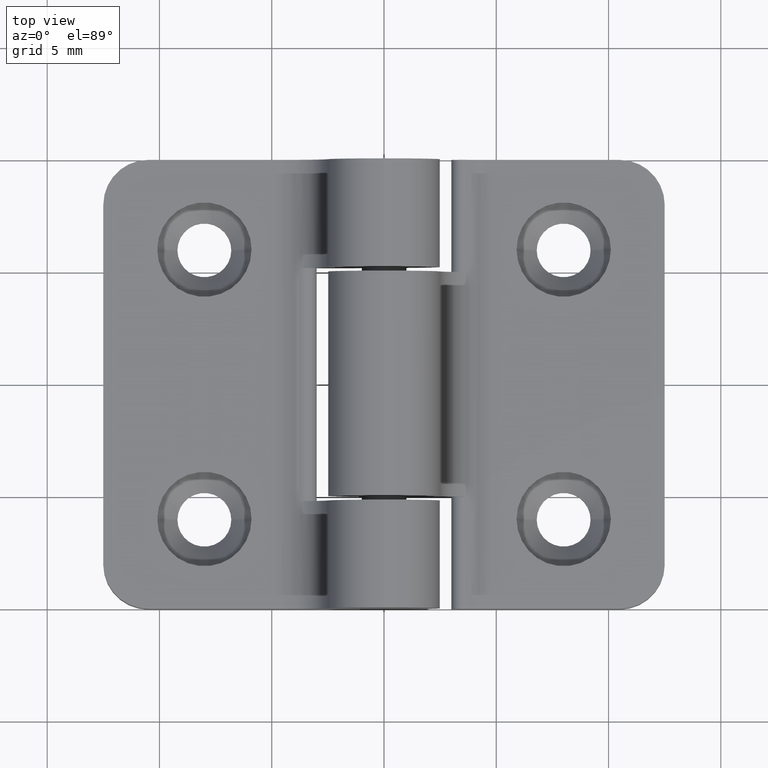
[diagram: clean part render]
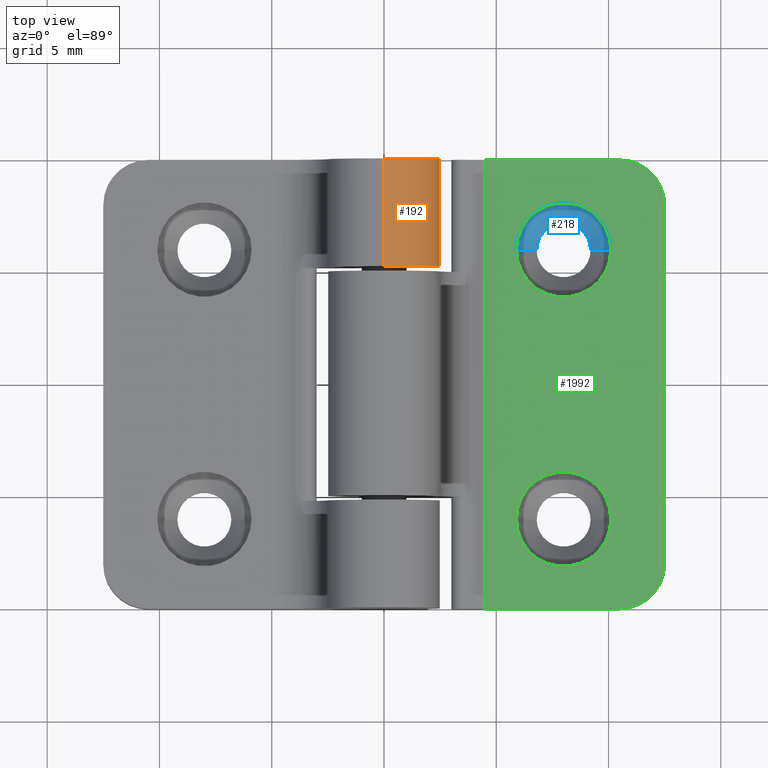
[diagram: same view with three faces highlighted in distinct colors, each labeled with its STEP entity id]
A machine part, top view with three faces highlighted in distinct colors.
Their STEP definitions:

[orange] entity #192 — the highlighted cylindrical surface (partial cylindrical patch) has radius 2.5 mm, axis along (-0, -1, -0).
#96 = DIRECTION ( 'NONE',  ( 0.0000000000000000000, 0.0000000000000000000, 1.000000000000000000 ) ) ;
#104 = DIRECTION ( 'NONE',  ( -0.0000000000000000000, -1.000000000000000000, -0.0000000000000000000 ) ) ;
#106 = AXIS2_PLACEMENT_3D ( 'NONE', #2408, #1272, #96 ) ;
#108 = CYLINDRICAL_SURFACE ( 'NONE', #1649, 2.500000000000000400 ) ;
#120 = CIRCLE ( 'NONE', #106, 2.500000000000000400 ) ;
#163 = VERTEX_POINT ( 'NONE', #731 ) ;
#192 = ADVANCED_FACE ( 'NONE', ( #708 ), #108, .T. ) ;
#259 = EDGE_CURVE ( 'NONE', #163, #2087, #457, .T. ) ;
#335 = CARTESIAN_POINT ( 'NONE',  ( 3.061616997868383600E-016, 20.00000000000000000, 2.500000000000000400 ) ) ;
#437 = EDGE_CURVE ( 'NONE', #1980, #2087, #1501, .T. ) ;
#457 = CIRCLE ( 'NONE', #2292, 2.500000000000000400 ) ;
#525 = DIRECTION ( 'NONE',  ( -0.0000000000000000000, -1.000000000000000000, -0.0000000000000000000 ) ) ;
#629 = LINE ( 'NONE', #688, #1582 ) ;
#688 = CARTESIAN_POINT ( 'NONE',  ( 0.0000000000000000000, 20.00000000000000000, -2.500000000000000400 ) ) ;
#708 = FACE_OUTER_BOUND ( 'NONE', #2151, .T. ) ;
#731 = CARTESIAN_POINT ( 'NONE',  ( -1.003088512701685300E-030, 15.19999999999999900, -2.500000000000000400 ) ) ;
#767 = ORIENTED_EDGE ( 'NONE', *, *, #259, .F. ) ;
#871 = DIRECTION ( 'NONE',  ( 1.000000000000000000, -6.938893903907227400E-016, 0.0000000000000000000 ) ) ;
#1032 = VERTEX_POINT ( 'NONE', #2119 ) ;
#1053 = CARTESIAN_POINT ( 'NONE',  ( 0.0000000000000000000, 15.19999999999999900, 0.0000000000000000000 ) ) ;
#1235 = CARTESIAN_POINT ( 'NONE',  ( 3.061616997868383600E-016, 20.00000000000000000, 2.500000000000000400 ) ) ;
#1268 = ORIENTED_EDGE ( 'NONE', *, *, #1628, .F. ) ;
#1272 = DIRECTION ( 'NONE',  ( 0.0000000000000000000, 1.000000000000000000, 0.0000000000000000000 ) ) ;
#1501 = LINE ( 'NONE', #1235, #1574 ) ;
#1574 = VECTOR ( 'NONE', #104, 1000.000000000000000 ) ;
#1582 = VECTOR ( 'NONE', #2032, 1000.000000000000000 ) ;
#1627 = CARTESIAN_POINT ( 'NONE',  ( 0.0000000000000000000, 20.00000000000000000, 0.0000000000000000000 ) ) ;
#1628 = EDGE_CURVE ( 'NONE', #1980, #1032, #120, .T. ) ;
#1637 = CARTESIAN_POINT ( 'NONE',  ( 3.061616997868373300E-016, 15.19999999999999900, 2.500000000000000400 ) ) ;
#1649 = AXIS2_PLACEMENT_3D ( 'NONE', #1627, #525, #2019 ) ;
#1810 = EDGE_CURVE ( 'NONE', #1032, #163, #629, .T. ) ;
#1980 = VERTEX_POINT ( 'NONE', #335 ) ;
#2019 = DIRECTION ( 'NONE',  ( 0.0000000000000000000, 0.0000000000000000000, -1.000000000000000000 ) ) ;
#2032 = DIRECTION ( 'NONE',  ( -0.0000000000000000000, -1.000000000000000000, -0.0000000000000000000 ) ) ;
#2087 = VERTEX_POINT ( 'NONE', #1637 ) ;
#2119 = CARTESIAN_POINT ( 'NONE',  ( 0.0000000000000000000, 20.00000000000000000, -2.500000000000000400 ) ) ;
#2151 = EDGE_LOOP ( 'NONE', ( #1268, #2395, #767, #2349 ) ) ;
#2211 = DIRECTION ( 'NONE',  ( -5.782411586589356700E-016, -1.000000000000000000, -0.0000000000000000000 ) ) ;
#2292 = AXIS2_PLACEMENT_3D ( 'NONE', #1053, #2211, #871 ) ;
#2349 = ORIENTED_EDGE ( 'NONE', *, *, #1810, .F. ) ;
#2395 = ORIENTED_EDGE ( 'NONE', *, *, #437, .T. ) ;
#2408 = CARTESIAN_POINT ( 'NONE',  ( 0.0000000000000000000, 20.00000000000000000, 0.0000000000000000000 ) ) ;

[blue] entity #218 — the highlighted conical surface has half-angle 45 deg.
#20 = EDGE_CURVE ( 'NONE', #983, #912, #408, .T. ) ;
#38 = VERTEX_POINT ( 'NONE', #2110 ) ;
#149 = LINE ( 'NONE', #377, #1579 ) ;
#203 = ORIENTED_EDGE ( 'NONE', *, *, #20, .T. ) ;
#212 = ORIENTED_EDGE ( 'NONE', *, *, #1389, .F. ) ;
#218 = ADVANCED_FACE ( 'NONE', ( #1536 ), #1989, .F. ) ;
#320 = CARTESIAN_POINT ( 'NONE',  ( 8.000000000000000000, 16.00000000000000000, -2.000000000000000000 ) ) ;
#377 = CARTESIAN_POINT ( 'NONE',  ( 5.899999999999998600, 16.00000000000000000, -2.000000000000000000 ) ) ;
#408 = LINE ( 'NONE', #1538, #2368 ) ;
#505 = DIRECTION ( 'NONE',  ( -0.0000000000000000000, -0.0000000000000000000, 1.000000000000000000 ) ) ;
#542 = ORIENTED_EDGE ( 'NONE', *, *, #2324, .F. ) ;
#555 = CARTESIAN_POINT ( 'NONE',  ( 5.899999999999998600, 16.00000000000000000, -2.000000000000000000 ) ) ;
#606 = DIRECTION ( 'NONE',  ( 0.0000000000000000000, 0.0000000000000000000, 1.000000000000000000 ) ) ;
#702 = ORIENTED_EDGE ( 'NONE', *, *, #1057, .T. ) ;
#754 = CIRCLE ( 'NONE', #1308, 1.199999999999999700 ) ;
#760 = CARTESIAN_POINT ( 'NONE',  ( 9.199999999999999300, 16.00000000000000000, -2.899999999999997200 ) ) ;
#777 = DIRECTION ( 'NONE',  ( -0.7071067811865487900, 8.659560562354948900E-017, 0.7071067811865463500 ) ) ;
#811 = CARTESIAN_POINT ( 'NONE',  ( 10.10000000000000100, 16.00000000000000000, -2.000000000000000000 ) ) ;
#912 = VERTEX_POINT ( 'NONE', #811 ) ;
#983 = VERTEX_POINT ( 'NONE', #760 ) ;
#1057 = EDGE_CURVE ( 'NONE', #912, #1804, #1554, .T. ) ;
#1110 = DIRECTION ( 'NONE',  ( -0.0000000000000000000, -0.0000000000000000000, 1.000000000000000000 ) ) ;
#1143 = AXIS2_PLACEMENT_3D ( 'NONE', #1751, #606, #1942 ) ;
#1308 = AXIS2_PLACEMENT_3D ( 'NONE', #2258, #1110, #2447 ) ;
#1389 = EDGE_CURVE ( 'NONE', #983, #38, #754, .T. ) ;
#1536 = FACE_OUTER_BOUND ( 'NONE', #2193, .T. ) ;
#1538 = CARTESIAN_POINT ( 'NONE',  ( 10.10000000000000100, 16.00000000000000000, -2.000000000000000000 ) ) ;
#1554 = CIRCLE ( 'NONE', #1143, 2.100000000000001000 ) ;
#1579 = VECTOR ( 'NONE', #777, 1000.000000000000000 ) ;
#1647 = DIRECTION ( 'NONE',  ( 1.000000000000000000, 0.0000000000000000000, 0.0000000000000000000 ) ) ;
#1751 = CARTESIAN_POINT ( 'NONE',  ( 8.000000000000000000, 16.00000000000000000, -2.000000000000000000 ) ) ;
#1779 = AXIS2_PLACEMENT_3D ( 'NONE', #320, #505, #1647 ) ;
#1804 = VERTEX_POINT ( 'NONE', #555 ) ;
#1942 = DIRECTION ( 'NONE',  ( 1.000000000000000000, 0.0000000000000000000, 0.0000000000000000000 ) ) ;
#1989 = CONICAL_SURFACE ( 'NONE', #1779, 2.100000000000001000, 0.7853981633974500600 ) ;
#2110 = CARTESIAN_POINT ( 'NONE',  ( 6.799999999999999800, 16.00000000000000000, -2.899999999999997200 ) ) ;
#2193 = EDGE_LOOP ( 'NONE', ( #542, #212, #203, #702 ) ) ;
#2258 = CARTESIAN_POINT ( 'NONE',  ( 8.000000000000000000, 16.00000000000000000, -2.899999999999997200 ) ) ;
#2295 = DIRECTION ( 'NONE',  ( 0.7071067811865487900, 0.0000000000000000000, 0.7071067811865463500 ) ) ;
#2324 = EDGE_CURVE ( 'NONE', #38, #1804, #149, .T. ) ;
#2368 = VECTOR ( 'NONE', #2295, 1000.000000000000000 ) ;
#2447 = DIRECTION ( 'NONE',  ( 1.000000000000000000, 0.0000000000000000000, 0.0000000000000000000 ) ) ;

[green] entity #1992 — the highlighted planar face has unit normal (0, 0, -1).
#6 = EDGE_LOOP ( 'NONE', ( #2224, #1961 ) ) ;
#31 = LINE ( 'NONE', #204, #2104 ) ;
#43 = VERTEX_POINT ( 'NONE', #602 ) ;
#143 = CARTESIAN_POINT ( 'NONE',  ( 1.000000000000000200, 20.00000000000000000, -1.500000000000000000 ) ) ;
#204 = CARTESIAN_POINT ( 'NONE',  ( 4.472135954999579600, 0.0000000000000000000, -1.500000000000000000 ) ) ;
#210 = CIRCLE ( 'NONE', #812, 2.000000000000000000 ) ;
#267 = DIRECTION ( 'NONE',  ( -1.000000000000000000, 0.0000000000000000000, -0.0000000000000000000 ) ) ;
#281 = DIRECTION ( 'NONE',  ( 0.0000000000000000000, 0.0000000000000000000, 1.000000000000000000 ) ) ;
#300 = CARTESIAN_POINT ( 'NONE',  ( 8.000000000000000000, 4.000000000000000000, -1.500000000000000000 ) ) ;
#379 = CARTESIAN_POINT ( 'NONE',  ( 12.50000000000000000, 18.00000000000000400, -1.500000000000000000 ) ) ;
#395 = ORIENTED_EDGE ( 'NONE', *, *, #1565, .F. ) ;
#442 = FACE_BOUND ( 'NONE', #1093, .T. ) ;
#443 = VERTEX_POINT ( 'NONE', #2404 ) ;
#507 = DIRECTION ( 'NONE',  ( 1.000000000000000000, 0.0000000000000000000, 0.0000000000000000000 ) ) ;
#554 = CARTESIAN_POINT ( 'NONE',  ( 12.50000000000000000, 1.999999999999998200, -1.500000000000000000 ) ) ;
#585 = EDGE_CURVE ( 'NONE', #1830, #43, #703, .T. ) ;
#602 = CARTESIAN_POINT ( 'NONE',  ( 5.899999999999998600, 4.000000000000000000, -1.500000000000000000 ) ) ;
#611 = CARTESIAN_POINT ( 'NONE',  ( 1.000000000000000200, 20.00000000000000000, -1.500000000000000000 ) ) ;
#635 = CIRCLE ( 'NONE', #2025, 2.100000000000001000 ) ;
#642 = DIRECTION ( 'NONE',  ( 1.000000000000000000, 0.0000000000000000000, 0.0000000000000000000 ) ) ;
#703 = CIRCLE ( 'NONE', #794, 2.100000000000001000 ) ;
#707 = VERTEX_POINT ( 'NONE', #1530 ) ;
#758 = CARTESIAN_POINT ( 'NONE',  ( 10.50000000000000000, 18.00000000000000400, -1.500000000000000000 ) ) ;
#766 = CARTESIAN_POINT ( 'NONE',  ( 5.899999999999998600, 16.00000000000000000, -1.500000000000000000 ) ) ;
#773 = FACE_BOUND ( 'NONE', #6, .T. ) ;
#794 = AXIS2_PLACEMENT_3D ( 'NONE', #1588, #1782, #642 ) ;
#812 = AXIS2_PLACEMENT_3D ( 'NONE', #758, #2102, #942 ) ;
#826 = ORIENTED_EDGE ( 'NONE', *, *, #585, .F. ) ;
#827 = EDGE_CURVE ( 'NONE', #2308, #1600, #635, .T. ) ;
#832 = VERTEX_POINT ( 'NONE', #379 ) ;
#842 = AXIS2_PLACEMENT_3D ( 'NONE', #1152, #2490, #1341 ) ;
#860 = EDGE_CURVE ( 'NONE', #1414, #443, #31, .T. ) ;
#867 = CARTESIAN_POINT ( 'NONE',  ( 10.50000000000000000, 20.00000000000000000, -1.500000000000000000 ) ) ;
#872 = ORIENTED_EDGE ( 'NONE', *, *, #2275, .T. ) ;
#910 = EDGE_CURVE ( 'NONE', #1414, #1244, #1456, .T. ) ;
#920 = DIRECTION ( 'NONE',  ( -0.0000000000000000000, -1.000000000000000000, -0.0000000000000000000 ) ) ;
#934 = DIRECTION ( 'NONE',  ( 0.0000000000000000000, 0.0000000000000000000, -1.000000000000000000 ) ) ;
#942 = DIRECTION ( 'NONE',  ( -1.000000000000000000, 0.0000000000000000000, 0.0000000000000000000 ) ) ;
#954 = VECTOR ( 'NONE', #2150, 1000.000000000000000 ) ;
#1029 = EDGE_LOOP ( 'NONE', ( #1911, #872, #2442, #1200, #1875, #1908 ) ) ;
#1074 = CARTESIAN_POINT ( 'NONE',  ( 10.10000000000000100, 16.00000000000000000, -1.500000000000000000 ) ) ;
#1093 = EDGE_LOOP ( 'NONE', ( #826, #395 ) ) ;
#1148 = VERTEX_POINT ( 'NONE', #554 ) ;
#1152 = CARTESIAN_POINT ( 'NONE',  ( 10.50000000000000000, 1.999999999999998200, -1.500000000000000000 ) ) ;
#1158 = CIRCLE ( 'NONE', #2207, 2.100000000000001000 ) ;
#1165 = CARTESIAN_POINT ( 'NONE',  ( 8.000000000000000000, 16.00000000000000000, -1.500000000000000000 ) ) ;
#1200 = ORIENTED_EDGE ( 'NONE', *, *, #860, .T. ) ;
#1202 = EDGE_CURVE ( 'NONE', #707, #1148, #1348, .T. ) ;
#1239 = LINE ( 'NONE', #2075, #2206 ) ;
#1241 = EDGE_CURVE ( 'NONE', #1600, #2308, #2353, .T. ) ;
#1244 = VERTEX_POINT ( 'NONE', #867 ) ;
#1264 = CARTESIAN_POINT ( 'NONE',  ( 10.10000000000000100, 4.000000000000000000, -1.500000000000000000 ) ) ;
#1307 = PLANE ( 'NONE',  #1757 ) ;
#1341 = DIRECTION ( 'NONE',  ( -1.000000000000000000, 0.0000000000000000000, 0.0000000000000000000 ) ) ;
#1348 = CIRCLE ( 'NONE', #842, 2.000000000000000000 ) ;
#1358 = DIRECTION ( 'NONE',  ( 1.000000000000000000, 0.0000000000000000000, 0.0000000000000000000 ) ) ;
#1414 = VERTEX_POINT ( 'NONE', #2365 ) ;
#1436 = CARTESIAN_POINT ( 'NONE',  ( 8.000000000000000000, 16.00000000000000000, -1.500000000000000000 ) ) ;
#1456 = LINE ( 'NONE', #611, #954 ) ;
#1477 = AXIS2_PLACEMENT_3D ( 'NONE', #1436, #281, #1634 ) ;
#1487 = LINE ( 'NONE', #1569, #2451 ) ;
#1530 = CARTESIAN_POINT ( 'NONE',  ( 10.50000000000000000, 0.0000000000000000000, -1.500000000000000000 ) ) ;
#1558 = DIRECTION ( 'NONE',  ( -0.0000000000000000000, -1.000000000000000000, -0.0000000000000000000 ) ) ;
#1565 = EDGE_CURVE ( 'NONE', #43, #1830, #1158, .T. ) ;
#1569 = CARTESIAN_POINT ( 'NONE',  ( 1.000000000000000200, 0.0000000000000000000, -1.500000000000000000 ) ) ;
#1588 = CARTESIAN_POINT ( 'NONE',  ( 8.000000000000000000, 4.000000000000000000, -1.500000000000000000 ) ) ;
#1600 = VERTEX_POINT ( 'NONE', #1074 ) ;
#1634 = DIRECTION ( 'NONE',  ( 1.000000000000000000, 0.0000000000000000000, 0.0000000000000000000 ) ) ;
#1651 = DIRECTION ( 'NONE',  ( 0.0000000000000000000, 0.0000000000000000000, 1.000000000000000000 ) ) ;
#1742 = EDGE_CURVE ( 'NONE', #832, #1148, #1239, .T. ) ;
#1757 = AXIS2_PLACEMENT_3D ( 'NONE', #143, #934, #267 ) ;
#1762 = DIRECTION ( 'NONE',  ( 1.000000000000000000, 0.0000000000000000000, 0.0000000000000000000 ) ) ;
#1782 = DIRECTION ( 'NONE',  ( 0.0000000000000000000, 0.0000000000000000000, 1.000000000000000000 ) ) ;
#1830 = VERTEX_POINT ( 'NONE', #1264 ) ;
#1875 = ORIENTED_EDGE ( 'NONE', *, *, #2446, .T. ) ;
#1908 = ORIENTED_EDGE ( 'NONE', *, *, #1202, .T. ) ;
#1911 = ORIENTED_EDGE ( 'NONE', *, *, #1742, .F. ) ;
#1961 = ORIENTED_EDGE ( 'NONE', *, *, #827, .F. ) ;
#1992 = ADVANCED_FACE ( 'NONE', ( #773, #442, #2293 ), #1307, .F. ) ;
#2025 = AXIS2_PLACEMENT_3D ( 'NONE', #1165, #2506, #1358 ) ;
#2075 = CARTESIAN_POINT ( 'NONE',  ( 12.50000000000000000, 20.00000000000000000, -1.500000000000000000 ) ) ;
#2102 = DIRECTION ( 'NONE',  ( -0.0000000000000000000, -0.0000000000000000000, 1.000000000000000000 ) ) ;
#2104 = VECTOR ( 'NONE', #1558, 1000.000000000000000 ) ;
#2150 = DIRECTION ( 'NONE',  ( 1.000000000000000000, 0.0000000000000000000, 0.0000000000000000000 ) ) ;
#2206 = VECTOR ( 'NONE', #920, 1000.000000000000000 ) ;
#2207 = AXIS2_PLACEMENT_3D ( 'NONE', #300, #1651, #507 ) ;
#2224 = ORIENTED_EDGE ( 'NONE', *, *, #1241, .F. ) ;
#2275 = EDGE_CURVE ( 'NONE', #832, #1244, #210, .T. ) ;
#2293 = FACE_OUTER_BOUND ( 'NONE', #1029, .T. ) ;
#2308 = VERTEX_POINT ( 'NONE', #766 ) ;
#2353 = CIRCLE ( 'NONE', #1477, 2.100000000000001000 ) ;
#2365 = CARTESIAN_POINT ( 'NONE',  ( 4.472135954999579600, 20.00000000000000000, -1.500000000000000000 ) ) ;
#2404 = CARTESIAN_POINT ( 'NONE',  ( 4.472135954999579600, 0.0000000000000000000, -1.500000000000000000 ) ) ;
#2442 = ORIENTED_EDGE ( 'NONE', *, *, #910, .F. ) ;
#2446 = EDGE_CURVE ( 'NONE', #443, #707, #1487, .T. ) ;
#2451 = VECTOR ( 'NONE', #1762, 1000.000000000000000 ) ;
#2490 = DIRECTION ( 'NONE',  ( -0.0000000000000000000, -0.0000000000000000000, 1.000000000000000000 ) ) ;
#2506 = DIRECTION ( 'NONE',  ( 0.0000000000000000000, 0.0000000000000000000, 1.000000000000000000 ) ) ;